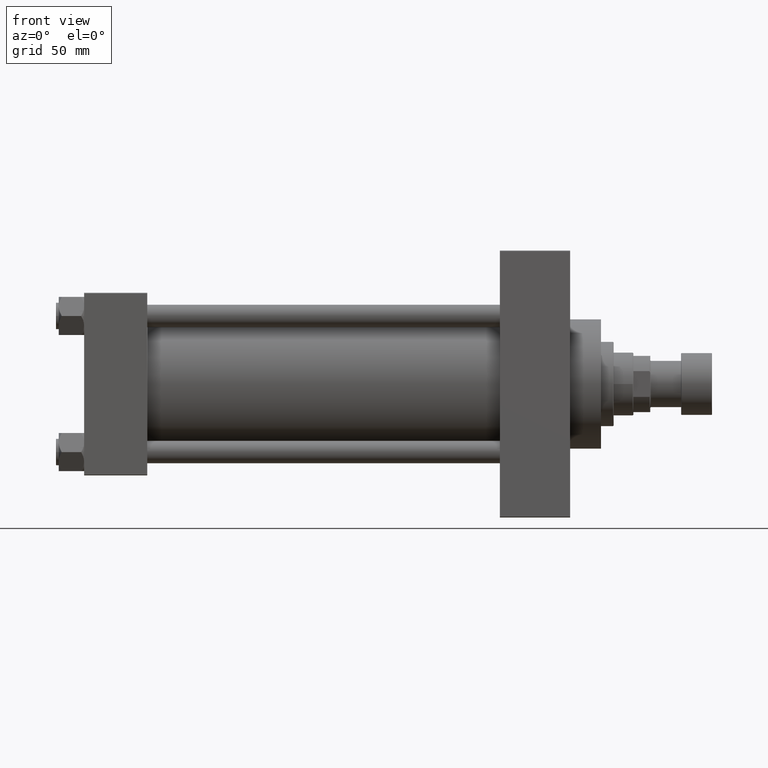
[diagram: clean part render]
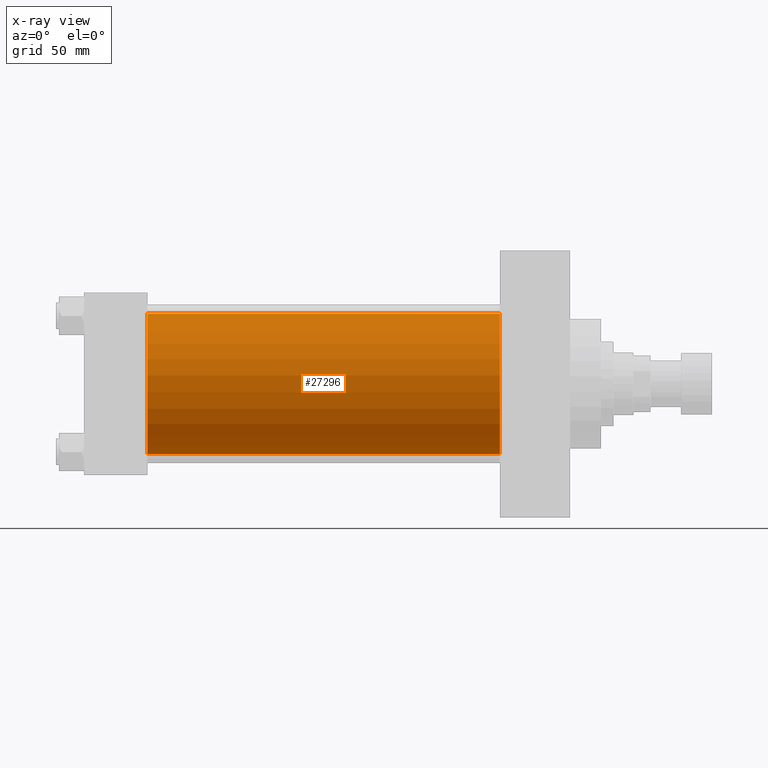
[diagram: x-ray — body ghosted, one internal face saturated and labeled with its STEP entity id]
A machine part, front view, then the same camera in x-ray: the body is ghosted and one INTERNAL B-rep face — a face not visible from any outside direction — is saturated and labeled: STEP entity #27296.
In plain terms, the highlighted cylindrical surface (partial cylindrical patch) has radius 50 mm, axis along (-1, -0, -0).
Its self-contained STEP definition (entity closure, byte-faithful):
#3145 = EDGE_LOOP ( 'NONE', ( #22644, #24569, #40366, #9815 ) ) ;
#3793 = EDGE_CURVE ( 'NONE', #26934, #28821, #46529, .T. ) ;
#4397 = CARTESIAN_POINT ( 'NONE',  ( 296.0000000000000000, -2.602085213965210642E-15, 0.000000000000000000 ) ) ;
#4403 = CIRCLE ( 'NONE', #7536, 50.00000000000000000 ) ;
#5301 = CARTESIAN_POINT ( 'NONE',  ( 296.0000000000000000, -2.602085213965210642E-15, 0.000000000000000000 ) ) ;
#5370 = CARTESIAN_POINT ( 'NONE',  ( 45.00000000000000000, -2.602085213965210642E-15, 0.000000000000000000 ) ) ;
#5384 = EDGE_CURVE ( 'NONE', #47035, #26934, #32994, .T. ) ;
#7536 = AXIS2_PLACEMENT_3D ( 'NONE', #4397, #19229, #34312 ) ;
#7626 = CARTESIAN_POINT ( 'NONE',  ( 296.0000000000000000, -2.602085213965210642E-15, 50.00000000000000000 ) ) ;
#9815 = ORIENTED_EDGE ( 'NONE', *, *, #5384, .F. ) ;
#14570 = CARTESIAN_POINT ( 'NONE',  ( 296.0000000000000000, 3.521148781771555838E-15, -50.00000000000000000 ) ) ;
#17892 = DIRECTION ( 'NONE',  ( -1.000000000000000000, -0.000000000000000000, -0.000000000000000000 ) ) ;
#19229 = DIRECTION ( 'NONE',  ( 1.000000000000000000, 0.000000000000000000, 0.000000000000000000 ) ) ;
#19903 = FACE_OUTER_BOUND ( 'NONE', #3145, .T. ) ;
#21753 = VECTOR ( 'NONE', #17892, 1000.000000000000000 ) ;
#22644 = ORIENTED_EDGE ( 'NONE', *, *, #48031, .T. ) ;
#24569 = ORIENTED_EDGE ( 'NONE', *, *, #32383, .T. ) ;
#24951 = VECTOR ( 'NONE', #37430, 1000.000000000000000 ) ;
#26154 = CARTESIAN_POINT ( 'NONE',  ( 296.0000000000000000, -2.602085213965210642E-15, 50.00000000000000000 ) ) ;
#26934 = VERTEX_POINT ( 'NONE', #32615 ) ;
#26999 = AXIS2_PLACEMENT_3D ( 'NONE', #5301, #47149, #32552 ) ;
#27296 = ADVANCED_FACE ( 'NONE', ( #19903 ), #38645, .F. ) ;
#28821 = VERTEX_POINT ( 'NONE', #29034 ) ;
#29034 = CARTESIAN_POINT ( 'NONE',  ( 45.00000000000000000, 3.521148781771555838E-15, -50.00000000000000000 ) ) ;
#31763 = AXIS2_PLACEMENT_3D ( 'NONE', #5370, #35545, #38480 ) ;
#32383 = EDGE_CURVE ( 'NONE', #45608, #28821, #34014, .T. ) ;
#32552 = DIRECTION ( 'NONE',  ( 0.000000000000000000, 0.000000000000000000, 1.000000000000000000 ) ) ;
#32615 = CARTESIAN_POINT ( 'NONE',  ( 45.00000000000000000, -2.602085213965210642E-15, 50.00000000000000000 ) ) ;
#32994 = LINE ( 'NONE', #26154, #21753 ) ;
#34014 = LINE ( 'NONE', #14570, #24951 ) ;
#34312 = DIRECTION ( 'NONE',  ( 0.000000000000000000, 0.000000000000000000, -1.000000000000000000 ) ) ;
#35545 = DIRECTION ( 'NONE',  ( 1.000000000000000000, 0.000000000000000000, 0.000000000000000000 ) ) ;
#37430 = DIRECTION ( 'NONE',  ( -1.000000000000000000, -0.000000000000000000, -0.000000000000000000 ) ) ;
#38480 = DIRECTION ( 'NONE',  ( 0.000000000000000000, 0.000000000000000000, -1.000000000000000000 ) ) ;
#38645 = CYLINDRICAL_SURFACE ( 'NONE', #26999, 50.00000000000000000 ) ;
#40366 = ORIENTED_EDGE ( 'NONE', *, *, #3793, .F. ) ;
#40565 = CARTESIAN_POINT ( 'NONE',  ( 296.0000000000000000, 3.521148781771555838E-15, -50.00000000000000000 ) ) ;
#45608 = VERTEX_POINT ( 'NONE', #40565 ) ;
#46529 = CIRCLE ( 'NONE', #31763, 50.00000000000000000 ) ;
#47035 = VERTEX_POINT ( 'NONE', #7626 ) ;
#47149 = DIRECTION ( 'NONE',  ( -1.000000000000000000, -0.000000000000000000, -0.000000000000000000 ) ) ;
#48031 = EDGE_CURVE ( 'NONE', #47035, #45608, #4403, .T. ) ;